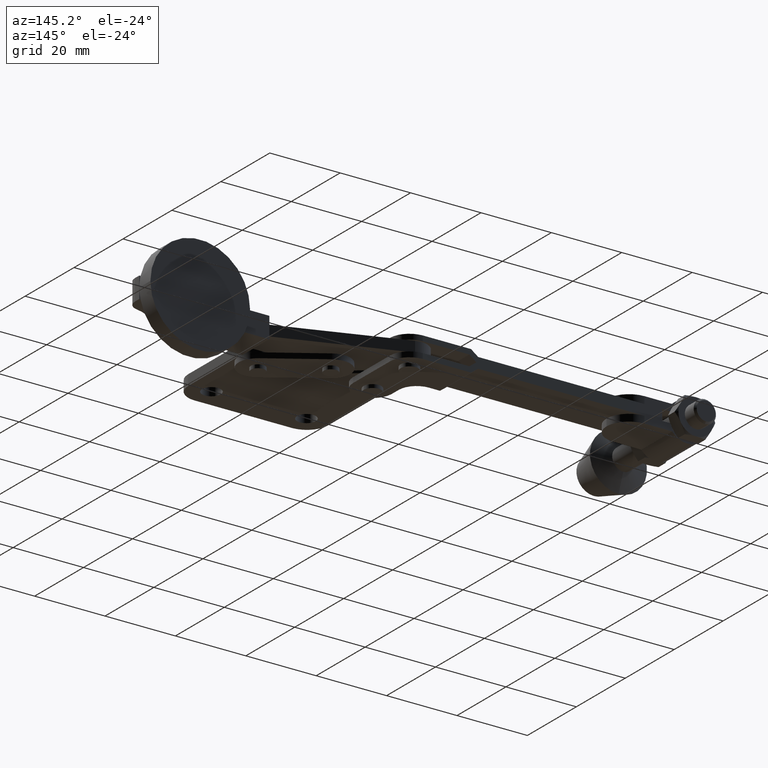
[diagram: clean part render]
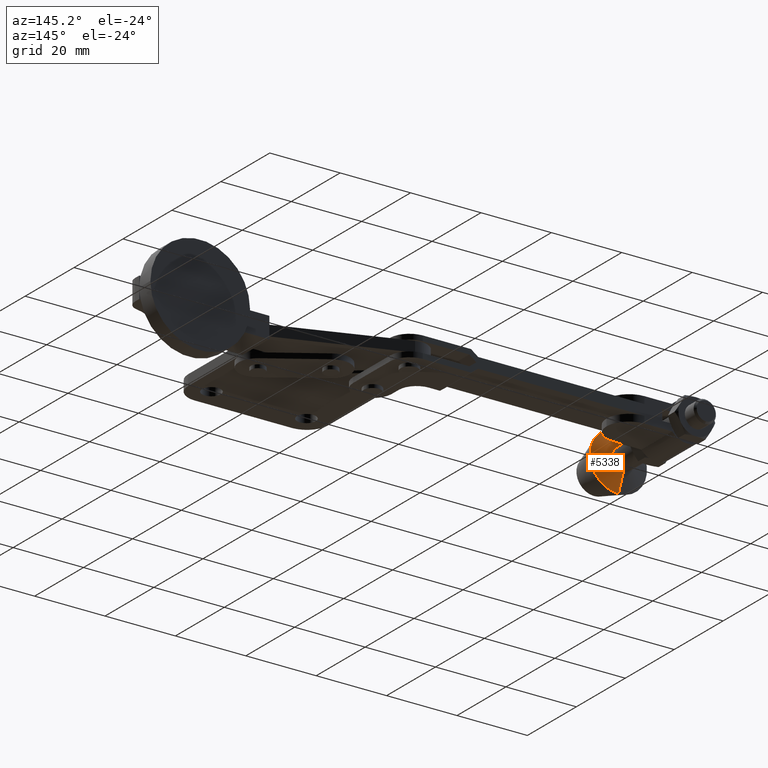
[diagram: same view with one face highlighted and labeled with its STEP entity id]
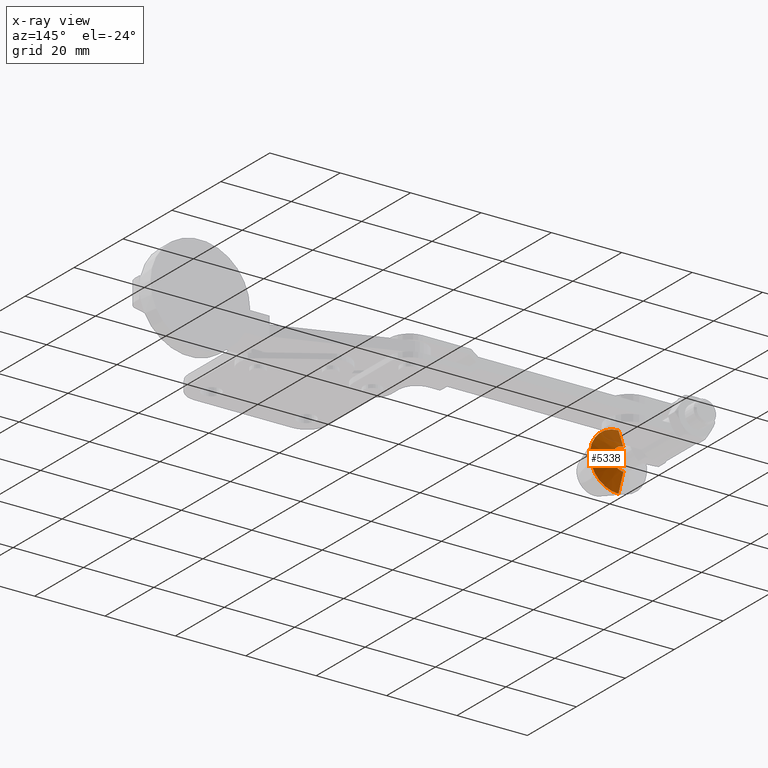
[diagram: x-ray of the same camera — body ghosted, the highlighted face saturated]
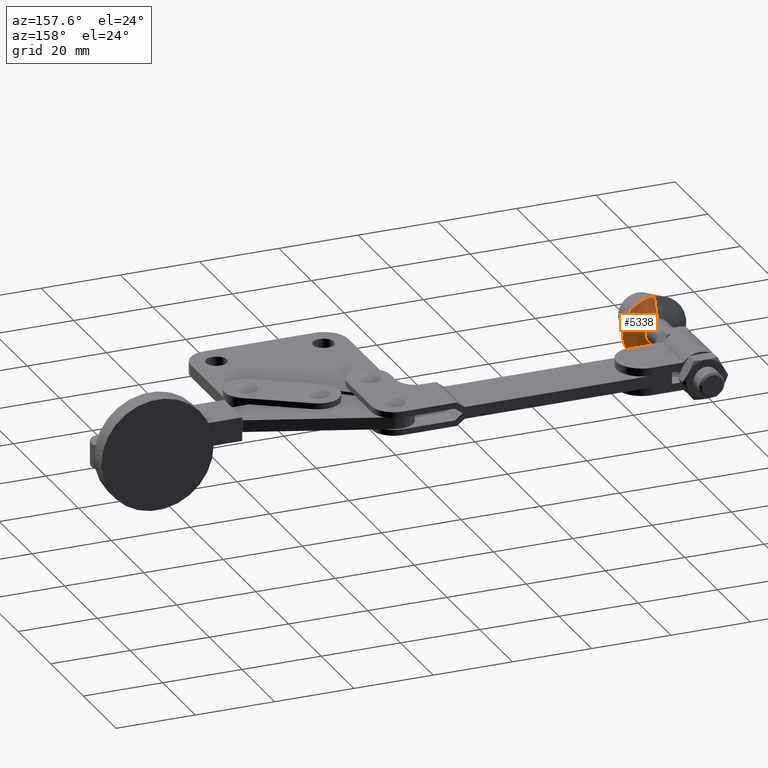
[diagram: same view with one face highlighted and labeled with its STEP entity id]
A machine part, auxiliary view. The second image highlights one B-rep face of the part: STEP entity #5338.
The next image is the same camera in x-ray: the body ghosted, the highlighted face saturated — about 14% of this face is hidden behind the body in this view.
A second angle (auxiliary view) of the same face is appended — the face is thin or edge-on in the first view.
In plain terms, the highlighted conical surface has half-angle 67.898 deg.
Its self-contained STEP definition (entity closure, byte-faithful):
#344 = CONICAL_SURFACE ( 'NONE', #7194, 8.099999999999999600, 1.185049822973323100 ) ;
#406 = VERTEX_POINT ( 'NONE', #473 ) ;
#473 = CARTESIAN_POINT ( 'NONE',  ( -107.9735026137468700, 11.99999039117083500, 3.174999999999923400 ) ) ;
#811 = EDGE_CURVE ( 'NONE', #406, #5137, #6450, .T. ) ;
#905 = CARTESIAN_POINT ( 'NONE',  ( -107.9735017150377800, 9.999990391170934200, -1.637765691990558400E-014 ) ) ;
#1288 = CIRCLE ( 'NONE', #4724, 3.175000000000003800 ) ;
#1330 = DIRECTION ( 'NONE',  ( 1.302476995568923800E-007, -0.9999999999999915600, -9.695778398624885900E-017 ) ) ;
#1497 = VERTEX_POINT ( 'NONE', #1725 ) ;
#1581 = DIRECTION ( 'NONE',  ( 0.0000000000000000000, 0.0000000000000000000, -1.000000000000000000 ) ) ;
#1725 = CARTESIAN_POINT ( 'NONE',  ( -107.9735019755331700, 11.99999039117091800, -3.175000000000019800 ) ) ;
#2047 = CARTESIAN_POINT ( 'NONE',  ( -107.9735017150377800, 9.999990391170934200, 8.099999999999983700 ) ) ;
#2444 = AXIS2_PLACEMENT_3D ( 'NONE', #905, #5516, #1581 ) ;
#2586 = CARTESIAN_POINT ( 'NONE',  ( -107.9735017150377800, 9.999990391170934200, -1.637765691990558400E-014 ) ) ;
#2768 = ORIENTED_EDGE ( 'NONE', *, *, #811, .T. ) ;
#2771 = VECTOR ( 'NONE', #5836, 1000.000000000000000 ) ;
#3046 = CARTESIAN_POINT ( 'NONE',  ( -107.9735017150377800, 9.999990391170934200, 8.099999999999985400 ) ) ;
#3085 = ORIENTED_EDGE ( 'NONE', *, *, #7008, .F. ) ;
#3094 = CARTESIAN_POINT ( 'NONE',  ( -107.9735019755331700, 11.99999039117091800, -1.618374135193308500E-014 ) ) ;
#3422 = CIRCLE ( 'NONE', #2444, 8.099999999999999600 ) ;
#3453 = ORIENTED_EDGE ( 'NONE', *, *, #7310, .F. ) ;
#3771 = DIRECTION ( 'NONE',  ( 0.0000000000000000000, 0.0000000000000000000, -1.000000000000000000 ) ) ;
#4304 = ORIENTED_EDGE ( 'NONE', *, *, #6822, .T. ) ;
#4550 = LINE ( 'NONE', #6414, #2771 ) ;
#4612 = DIRECTION ( 'NONE',  ( 0.0000000000000000000, 0.0000000000000000000, -1.000000000000000000 ) ) ;
#4724 = AXIS2_PLACEMENT_3D ( 'NONE', #3094, #7655, #3771 ) ;
#5137 = VERTEX_POINT ( 'NONE', #3046 ) ;
#5338 = ADVANCED_FACE ( 'NONE', ( #6178 ), #344, .T. ) ;
#5516 = DIRECTION ( 'NONE',  ( 1.302476995568923800E-007, -0.9999999999999915600, -9.695778398624885900E-017 ) ) ;
#5658 = EDGE_LOOP ( 'NONE', ( #4304, #2768, #3453, #3085 ) ) ;
#5798 = VERTEX_POINT ( 'NONE', #7725 ) ;
#5836 = DIRECTION ( 'NONE',  ( 4.900581295838377500E-008, -0.3762508906115271100, -0.9265178181308928500 ) ) ;
#6178 = FACE_OUTER_BOUND ( 'NONE', #5658, .T. ) ;
#6414 = CARTESIAN_POINT ( 'NONE',  ( -107.9735017150377800, 9.999990391170934200, -8.100000000000015600 ) ) ;
#6450 = LINE ( 'NONE', #2047, #6483 ) ;
#6483 = VECTOR ( 'NONE', #6561, 1000.000000000000100 ) ;
#6561 = DIRECTION ( 'NONE',  ( 4.900581307184950200E-008, -0.3762508906115272800, 0.9265178181308927300 ) ) ;
#6822 = EDGE_CURVE ( 'NONE', #1497, #406, #1288, .T. ) ;
#7008 = EDGE_CURVE ( 'NONE', #1497, #5798, #4550, .T. ) ;
#7194 = AXIS2_PLACEMENT_3D ( 'NONE', #2586, #1330, #4612 ) ;
#7310 = EDGE_CURVE ( 'NONE', #5798, #5137, #3422, .T. ) ;
#7655 = DIRECTION ( 'NONE',  ( 1.302476995568923800E-007, -0.9999999999999915600, -9.695778398624885900E-017 ) ) ;
#7725 = CARTESIAN_POINT ( 'NONE',  ( -107.9735017150377800, 9.999990391170934200, -8.100000000000013900 ) ) ;